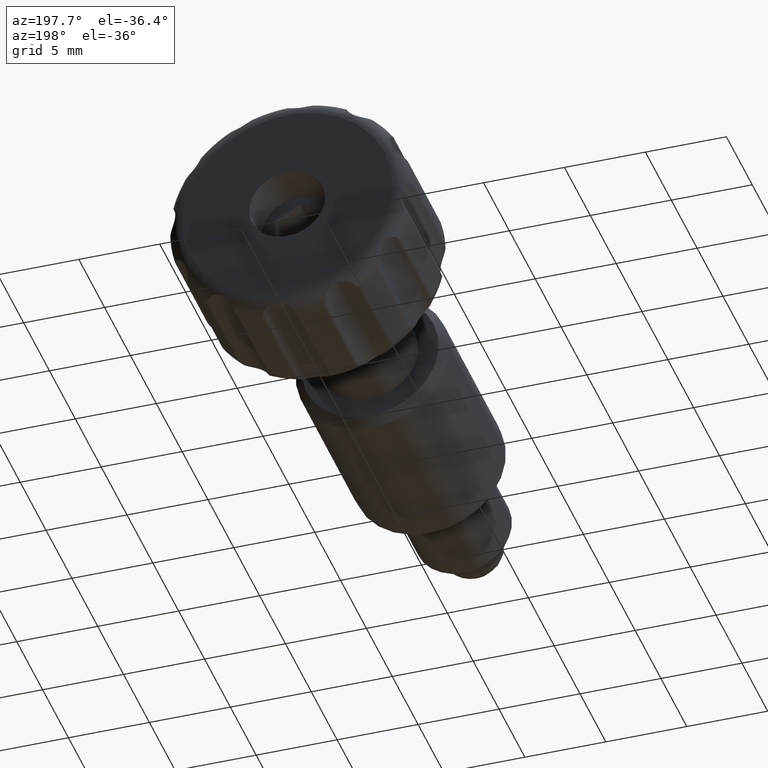
[diagram: clean part render]
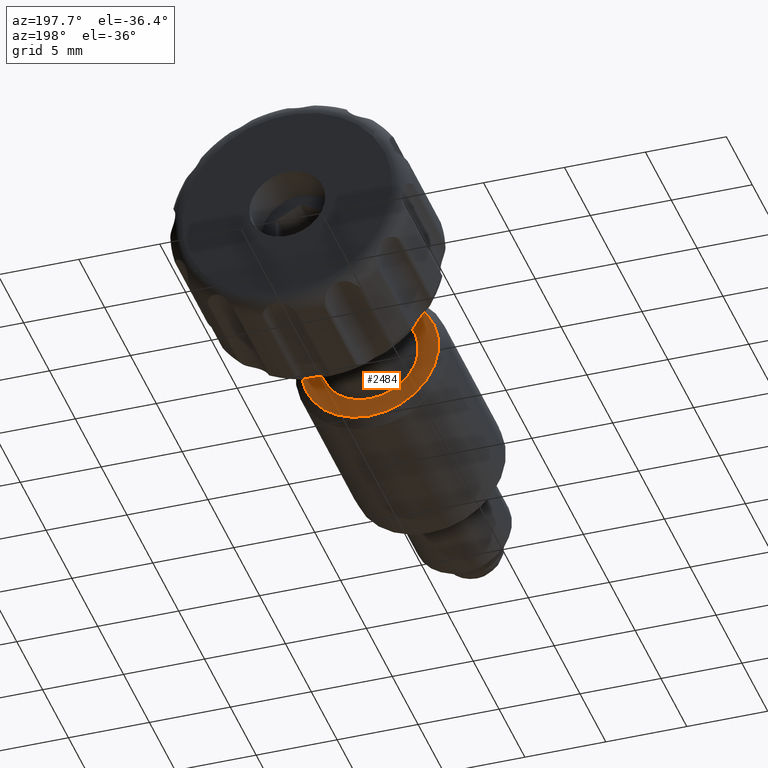
[diagram: same view with one face highlighted and labeled with its STEP entity id]
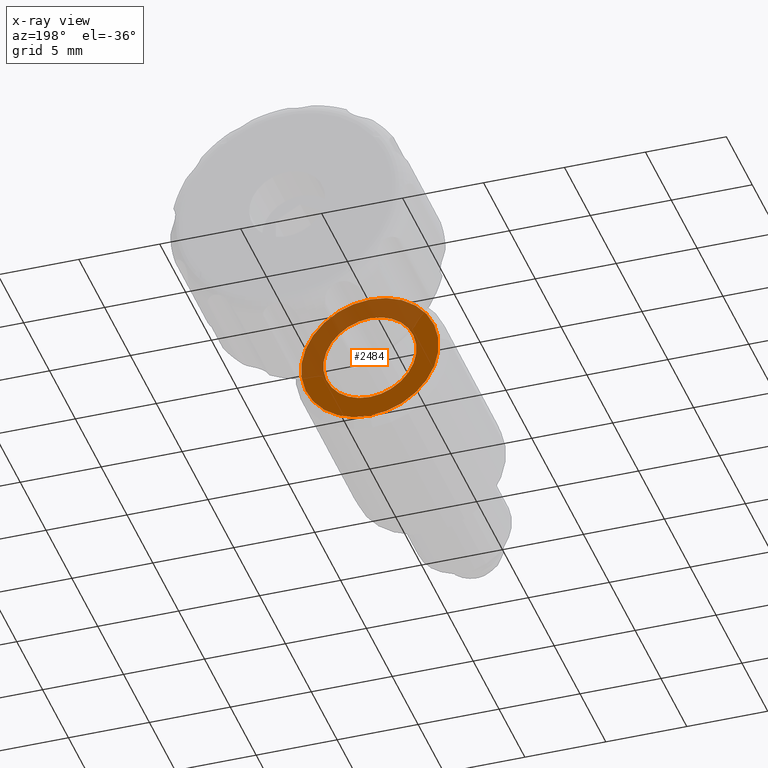
[diagram: x-ray of the same camera — body ghosted, the highlighted face saturated]
A machine part, auxiliary view. The second image highlights one B-rep face of the part: STEP entity #2484.
The next image is the same camera in x-ray: the body ghosted, the highlighted face saturated — about 44% of this face is hidden behind the body in this view.
In plain terms, the highlighted planar face has unit normal (-0, -1, 0).
Its self-contained STEP definition (entity closure, byte-faithful):
#91 = EDGE_CURVE ( 'NONE', #2603, #2603, #1050, .T. ) ;
#109 = CARTESIAN_POINT ( 'NONE',  ( 0.000000000000000000, 0.000000000000000000, 0.000000000000000000 ) ) ;
#194 = DIRECTION ( 'NONE',  ( 1.110223024615719422E-16, 2.572937036057972714E-16, 1.000000000000000000 ) ) ;
#255 = FACE_BOUND ( 'NONE', #549, .T. ) ;
#273 = ORIENTED_EDGE ( 'NONE', *, *, #91, .T. ) ;
#326 = EDGE_CURVE ( 'NONE', #2114, #2114, #1008, .T. ) ;
#406 = AXIS2_PLACEMENT_3D ( 'NONE', #1789, #841, #194 ) ;
#444 = PLANE ( 'NONE',  #507 ) ;
#507 = AXIS2_PLACEMENT_3D ( 'NONE', #1295, #680, #1699 ) ;
#529 = EDGE_LOOP ( 'NONE', ( #273 ) ) ;
#549 = EDGE_LOOP ( 'NONE', ( #1565 ) ) ;
#680 = DIRECTION ( 'NONE',  ( -2.242596216879638784E-16, -1.000000000000000000, 2.572937036057973207E-16 ) ) ;
#841 = DIRECTION ( 'NONE',  ( 2.242596216879639770E-16, 1.000000000000000000, 2.572937036057979123E-16 ) ) ;
#998 = FACE_OUTER_BOUND ( 'NONE', #529, .T. ) ;
#1008 = CIRCLE ( 'NONE', #2240, 2.875000000000006661 ) ;
#1050 = CIRCLE ( 'NONE', #406, 4.250000000000004441 ) ;
#1295 = CARTESIAN_POINT ( 'NONE',  ( 0.000000000000000000, 0.000000000000000000, 0.000000000000000000 ) ) ;
#1565 = ORIENTED_EDGE ( 'NONE', *, *, #326, .T. ) ;
#1699 = DIRECTION ( 'NONE',  ( 1.110223024615719545E-16, 2.572937036057972714E-16, 1.000000000000000000 ) ) ;
#1789 = CARTESIAN_POINT ( 'NONE',  ( 0.000000000000000000, 0.000000000000000000, 0.000000000000000000 ) ) ;
#1967 = DIRECTION ( 'NONE',  ( 1.110223024615719422E-16, 2.572937036057972714E-16, 1.000000000000000000 ) ) ;
#2114 = VERTEX_POINT ( 'NONE', #2358 ) ;
#2240 = AXIS2_PLACEMENT_3D ( 'NONE', #109, #2579, #1967 ) ;
#2358 = CARTESIAN_POINT ( 'NONE',  ( 3.191891195770200565E-16, 7.397193978666688870E-16, 2.875000000000006661 ) ) ;
#2484 = ADVANCED_FACE ( 'NONE', ( #998, #255 ), #444, .F. ) ;
#2579 = DIRECTION ( 'NONE',  ( -2.242596216879639770E-16, -1.000000000000000000, -2.572937036057979123E-16 ) ) ;
#2588 = CARTESIAN_POINT ( 'NONE',  ( 4.718447854616812567E-16, 1.093498240324639574E-15, 4.250000000000004441 ) ) ;
#2603 = VERTEX_POINT ( 'NONE', #2588 ) ;